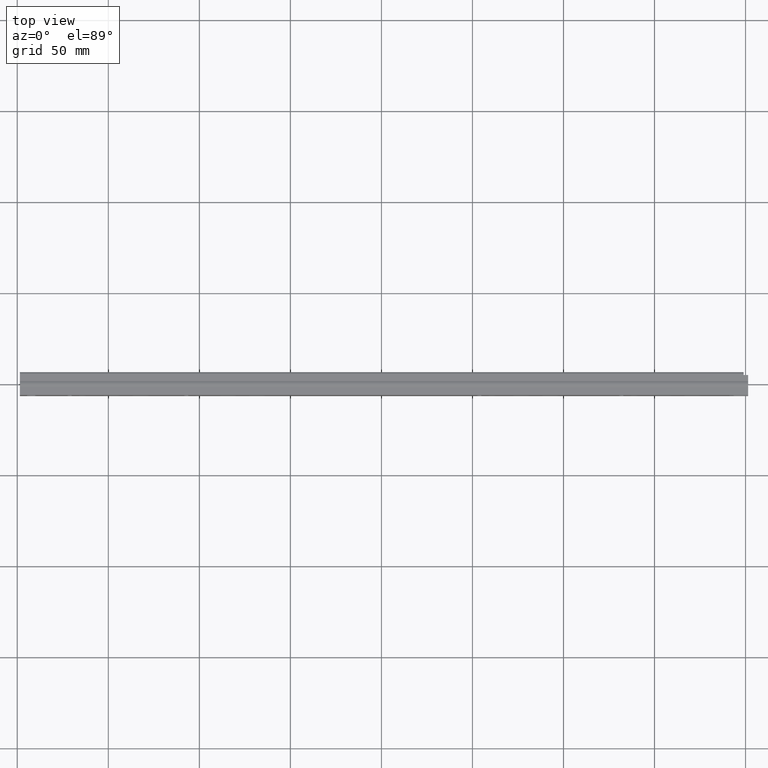
[diagram: clean part render]
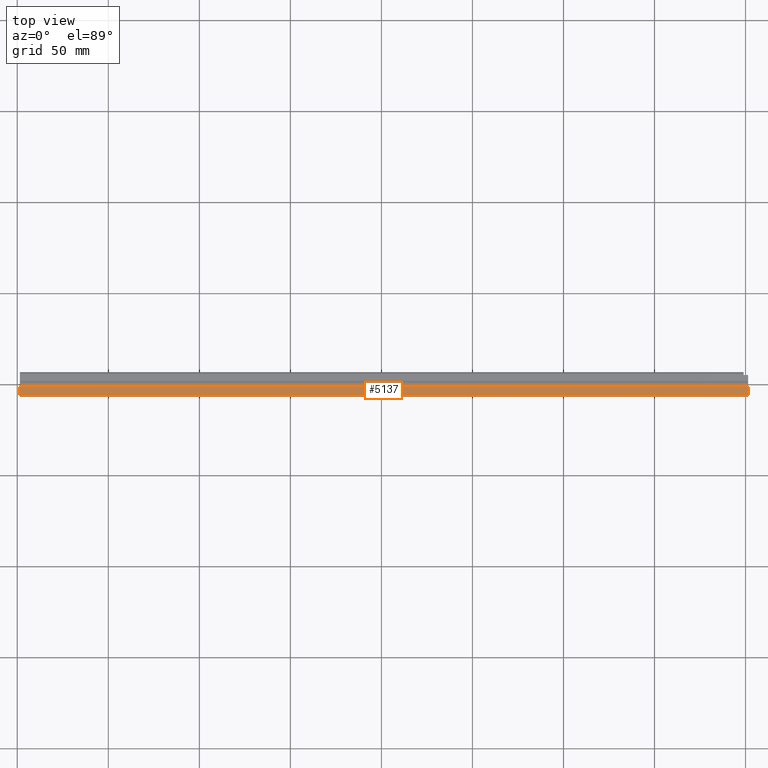
[diagram: same view with one face highlighted and labeled with its STEP entity id]
A machine part, top view. The second image highlights one B-rep face of the part: STEP entity #5137.
In plain terms, the highlighted planar face has unit normal (0, 0, 1).
Its self-contained STEP definition (entity closure, byte-faithful):
#345=FACE_OUTER_BOUND('',#635,.T.);
#635=EDGE_LOOP('',(#3938,#3939,#3940,#3941));
#1074=LINE('',#7978,#1612);
#1075=LINE('',#7980,#1613);
#1076=LINE('',#7982,#1614);
#1077=LINE('',#7983,#1615);
#1612=VECTOR('',#6454,400.);
#1613=VECTOR('',#6455,4.35);
#1614=VECTOR('',#6456,400.);
#1615=VECTOR('',#6457,4.35);
#2356=VERTEX_POINT('',#7976);
#2357=VERTEX_POINT('',#7977);
#2358=VERTEX_POINT('',#7979);
#2359=VERTEX_POINT('',#7981);
#2966=EDGE_CURVE('',#2356,#2357,#1074,.T.);
#2967=EDGE_CURVE('',#2358,#2357,#1075,.T.);
#2968=EDGE_CURVE('',#2359,#2358,#1076,.T.);
#2969=EDGE_CURVE('',#2356,#2359,#1077,.T.);
#3938=ORIENTED_EDGE('',*,*,#2966,.T.);
#3939=ORIENTED_EDGE('',*,*,#2967,.F.);
#3940=ORIENTED_EDGE('',*,*,#2968,.F.);
#3941=ORIENTED_EDGE('',*,*,#2969,.F.);
#4925=PLANE('',#5513);
#5137=ADVANCED_FACE('',(#345),#4925,.T.);
#5513=AXIS2_PLACEMENT_3D('',#7975,#6452,#6453);
#6452=DIRECTION('center_axis',(0.,0.,1.));
#6453=DIRECTION('ref_axis',(0.,-1.,0.));
#6454=DIRECTION('',(1.,0.,0.));
#6455=DIRECTION('',(0.,-1.,0.));
#6456=DIRECTION('',(1.,0.,0.));
#6457=DIRECTION('',(0.,1.,0.));
#7975=CARTESIAN_POINT('Origin',(0.,4.35000000000001,17.));
#7976=CARTESIAN_POINT('',(-200.,5.20474889637625E-15,17.));
#7977=CARTESIAN_POINT('',(200.,5.20474889637625E-15,17.));
#7978=CARTESIAN_POINT('',(0.,5.20474889637625E-15,17.));
#7979=CARTESIAN_POINT('',(200.,4.35000000000001,17.));
#7980=CARTESIAN_POINT('',(200.,4.35000000000001,17.));
#7981=CARTESIAN_POINT('',(-200.,4.35000000000001,17.));
#7982=CARTESIAN_POINT('',(0.,4.35000000000001,17.));
#7983=CARTESIAN_POINT('',(-200.,4.35000000000001,17.));